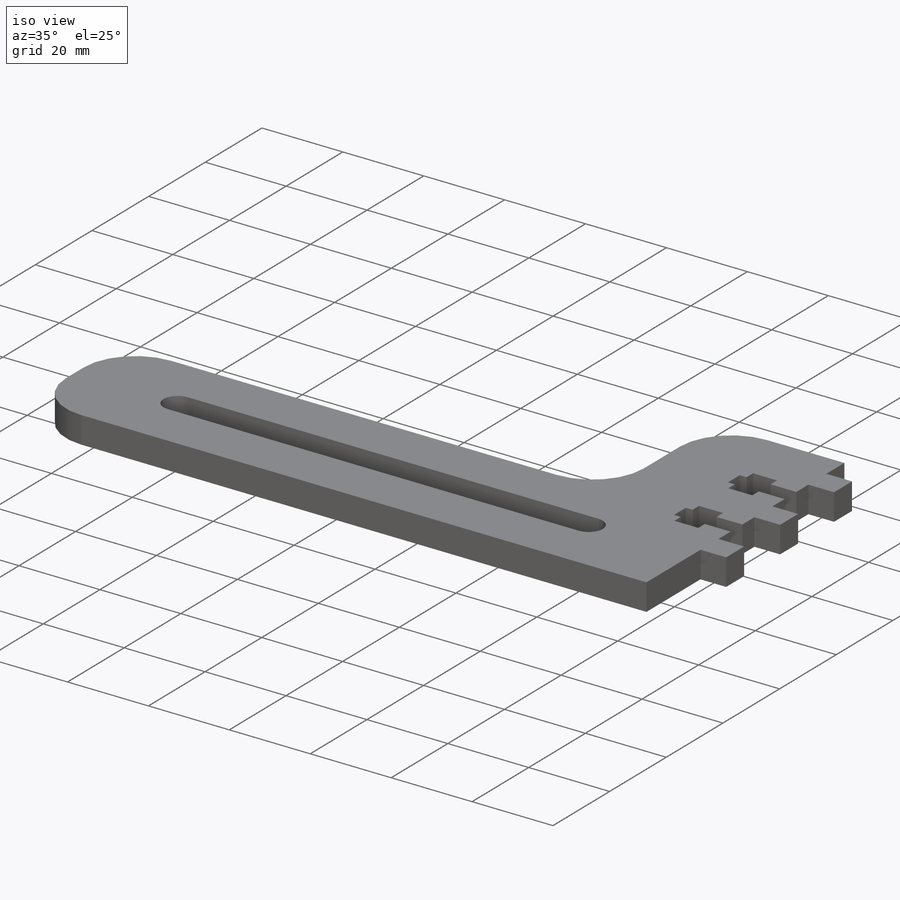
[diagram: iso view]
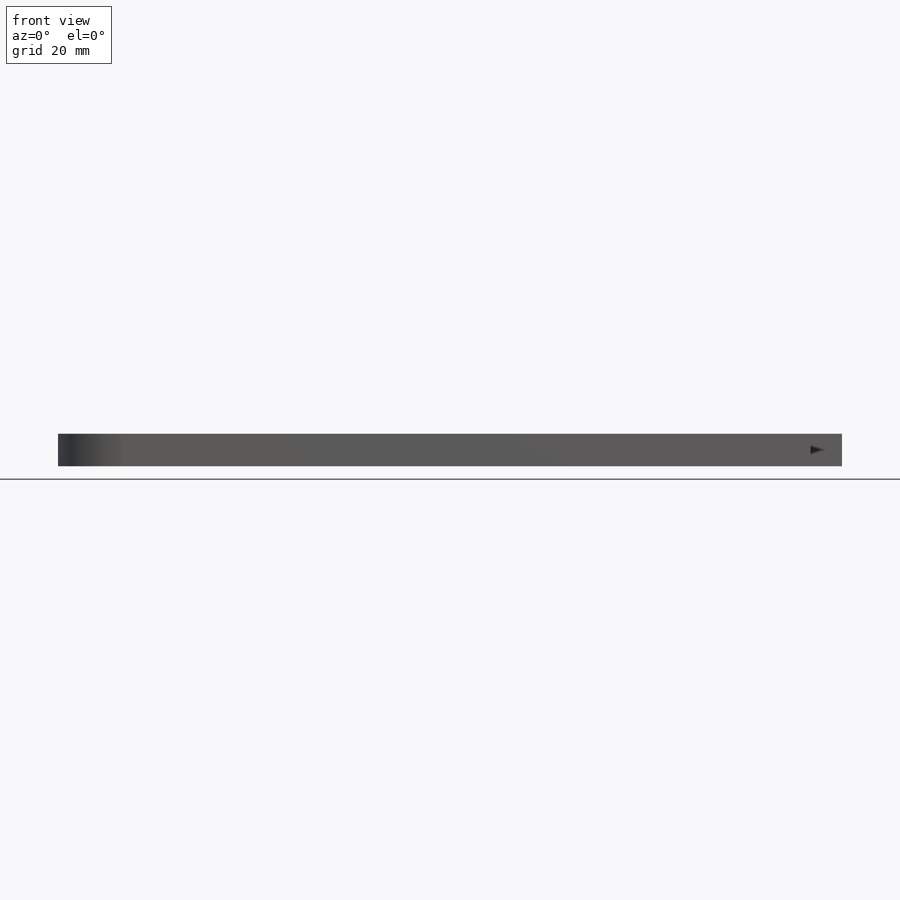
[diagram: front view]
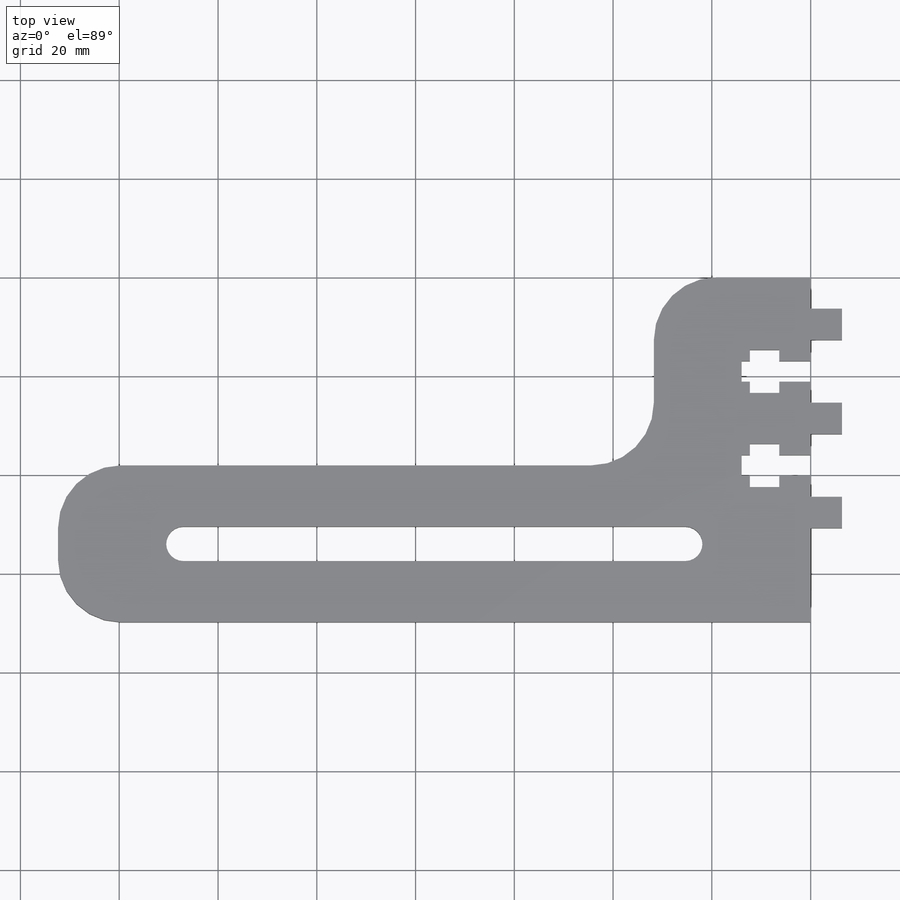
[diagram: top view]
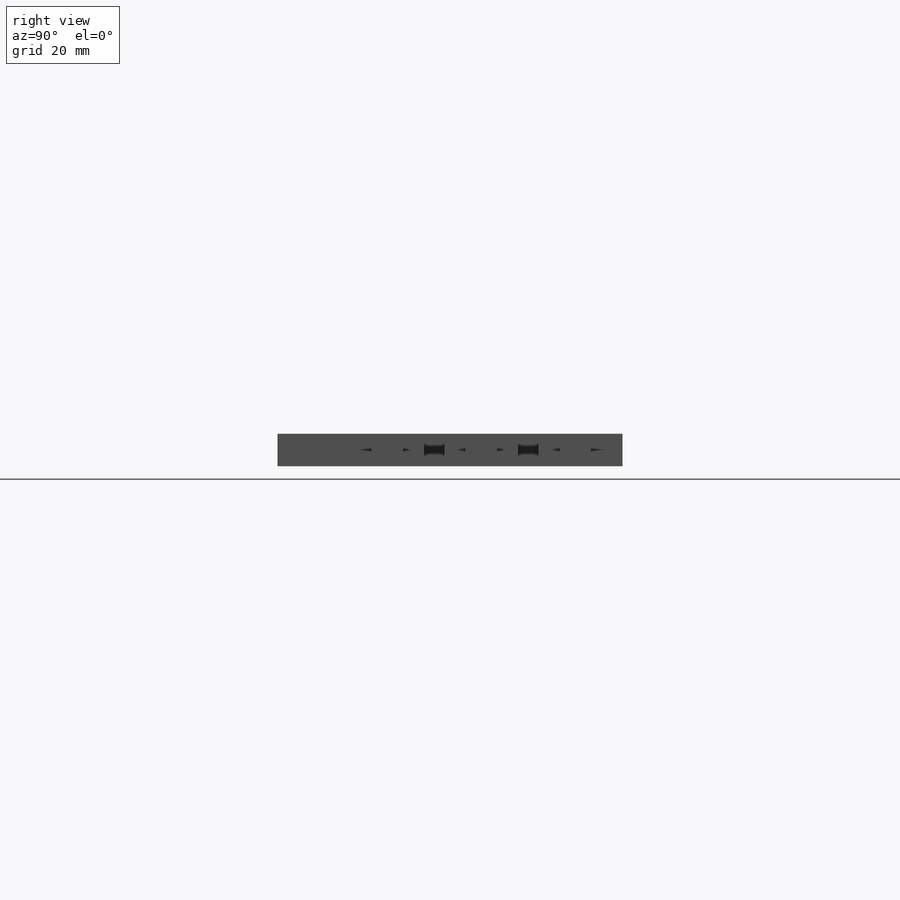
[diagram: right view]
SOLIDWORKS PART (.sldprt)
format: sldprt  version: not decoded by parser v0  size: 563,712 bytes
history: native  units: mm
features: sketch x5, extrude x2, cut_extrude x2, material x1, fillet x1 (+12 scaffold rows collapsed)
feature tree (23):
  scaffold x12  (default folders/planes/origin — collapsed)
  material  "Acrylic (BLUE)"
  sketch  "Sketch1"  dims[c1.D1=152.4mm c1.D2=152.4mm c1.D3=31.75mm c1.D4=31.75mm c2.D1=69.85mm]
  extrude  "Boss-Extrude1"  Depth=6.604mm
  fillet  "Fillet1"  Radius=12.7mm
  sketch  "Sketch2"  dims[c1.D3=6.985mm c1.D1=6.985mm c1.D2=25.4mm c2.D3=25.4mm c2.D4=101.6mm c2.D1=25.4mm c2.D2=25.4mm]
  cut_extrude  "Cut-Extrude1"  [1 undecoded]
  sketch  "Sketch3"  dims[c1.D1=6.35mm c1.D2=4.1656mm c1.D3=25.4mm c1.D4=6.35mm c1.D5=8.7376mm c1.D6=5.9436mm c1.D7=6.35mm c1.D8=20.32mm c1.D9=2.0 c2.D1=6.35mm]
  sketch  "Sketch4"
  cut_extrude  "Cut-Extrude2"  [1 undecoded]
  sketch  "Sketch5"
  extrude  "Boss-Extrude2"  Depth=0.0508mm
decode coverage: 6 of 10 modeling features carry decoded parameters
note: 2 parameter values undecoded
note: suppression state not decoded; provenance and decode notes live in map.json
